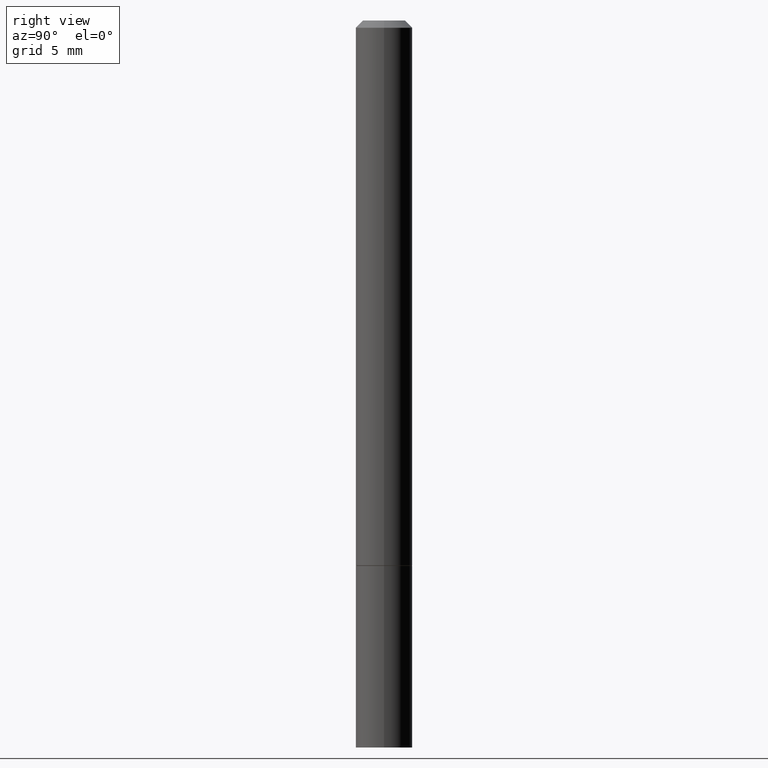
[diagram: clean part render]
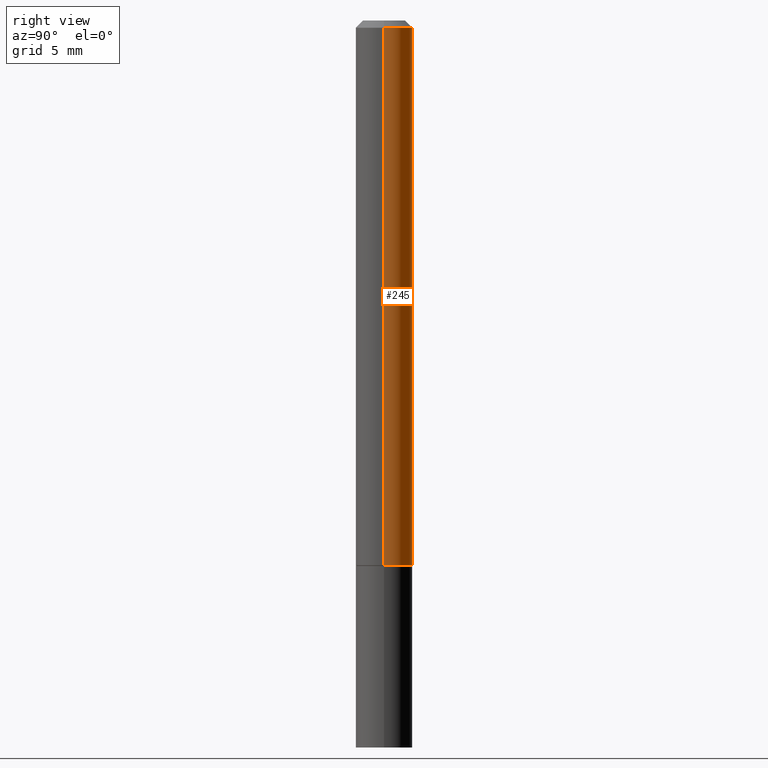
[diagram: same view with one face highlighted and labeled with its STEP entity id]
A machine part, right view. The second image highlights one B-rep face of the part: STEP entity #245.
In plain terms, the highlighted cylindrical surface (edge-blend (fillet) strip) has radius 1.9837 mm, axis along (-0, 0, 1).
Its self-contained STEP definition (entity closure, byte-faithful):
#9 = DIRECTION ( 'NONE',  ( 1.000000000000000000, -6.982962677686266711E-15, 4.876176775795935232E-29 ) ) ;
#31 = CARTESIAN_POINT ( 'NONE',  ( 0.07809999999999980846, -6.056345204028183286E-16, -0.02000000000000001776 ) ) ;
#42 = CARTESIAN_POINT ( 'NONE',  ( -0.07809999999999980846, 4.755397583504331521E-16, -0.02000000000000001776 ) ) ;
#43 = AXIS2_PLACEMENT_3D ( 'NONE', #358, #271, #302 ) ;
#44 = ORIENTED_EDGE ( 'NONE', *, *, #144, .T. ) ;
#64 = DIRECTION ( 'NONE',  ( -2.445468806185136597E-29, 3.491481338843145583E-15, 1.000000000000000000 ) ) ;
#66 = VECTOR ( 'NONE', #121, 39.37007874015748143 ) ;
#75 = CYLINDRICAL_SURFACE ( 'NONE', #362, 0.07809999999999991949 ) ;
#83 = EDGE_CURVE ( 'NONE', #376, #203, #216, .T. ) ;
#85 = VERTEX_POINT ( 'NONE', #363 ) ;
#91 = CARTESIAN_POINT ( 'NONE',  ( 0.07809999999999991949, -5.453693851272968448E-16, 3.808294061896621499E-30 ) ) ;
#103 = CARTESIAN_POINT ( 'NONE',  ( 0.000000000000000000, 0.000000000000000000, 0.000000000000000000 ) ) ;
#108 = EDGE_CURVE ( 'NONE', #85, #376, #387, .T. ) ;
#121 = DIRECTION ( 'NONE',  ( -2.445468806185136877E-29, 3.491481338843145188E-15, 1.000000000000000000 ) ) ;
#135 = CARTESIAN_POINT ( 'NONE',  ( -0.07810000000000000275, -2.096846200222727419E-15, -1.498999999999999666 ) ) ;
#136 = ORIENTED_EDGE ( 'NONE', *, *, #108, .F. ) ;
#144 = EDGE_CURVE ( 'NONE', #85, #320, #248, .T. ) ;
#196 = VECTOR ( 'NONE', #230, 39.37007874015748143 ) ;
#203 = VERTEX_POINT ( 'NONE', #42 ) ;
#210 = DIRECTION ( 'NONE',  ( 1.000000000000000000, -6.982962677686266711E-15, 0.000000000000000000 ) ) ;
#215 = EDGE_CURVE ( 'NONE', #320, #203, #374, .T. ) ;
#216 = CIRCLE ( 'NONE', #43, 0.07809999999999980846 ) ;
#230 = DIRECTION ( 'NONE',  ( -2.445468806185136877E-29, 3.491481338843145188E-15, 1.000000000000000000 ) ) ;
#237 = CARTESIAN_POINT ( 'NONE',  ( 3.665757740471518732E-29, -5.233730526925875170E-15, -1.498999999999999666 ) ) ;
#245 = ADVANCED_FACE ( 'NONE', ( #253 ), #75, .T. ) ;
#248 = CIRCLE ( 'NONE', #268, 0.07810000000000000275 ) ;
#253 = FACE_OUTER_BOUND ( 'NONE', #350, .T. ) ;
#268 = AXIS2_PLACEMENT_3D ( 'NONE', #237, #64, #210 ) ;
#271 = DIRECTION ( 'NONE',  ( -2.445468806185136597E-29, 3.491481338843145583E-15, 1.000000000000000000 ) ) ;
#282 = CARTESIAN_POINT ( 'NONE',  ( -0.07809999999999991949, 5.549338766286376731E-16, -3.841688305489077071E-30 ) ) ;
#285 = ORIENTED_EDGE ( 'NONE', *, *, #215, .T. ) ;
#302 = DIRECTION ( 'NONE',  ( 1.000000000000000000, -6.982962677686267499E-15, 0.000000000000000000 ) ) ;
#309 = ORIENTED_EDGE ( 'NONE', *, *, #83, .F. ) ;
#319 = DIRECTION ( 'NONE',  ( -2.445468806185136597E-29, 3.491481338843145583E-15, 1.000000000000000000 ) ) ;
#320 = VERTEX_POINT ( 'NONE', #135 ) ;
#350 = EDGE_LOOP ( 'NONE', ( #44, #285, #309, #136 ) ) ;
#358 = CARTESIAN_POINT ( 'NONE',  ( 4.890937612370276662E-31, -6.982962677686296539E-17, -0.02000000000000001776 ) ) ;
#362 = AXIS2_PLACEMENT_3D ( 'NONE', #103, #319, #9 ) ;
#363 = CARTESIAN_POINT ( 'NONE',  ( 0.07810000000000000275, -5.779099912053172606E-15, -1.498999999999999666 ) ) ;
#374 = LINE ( 'NONE', #282, #196 ) ;
#376 = VERTEX_POINT ( 'NONE', #31 ) ;
#387 = LINE ( 'NONE', #91, #66 ) ;